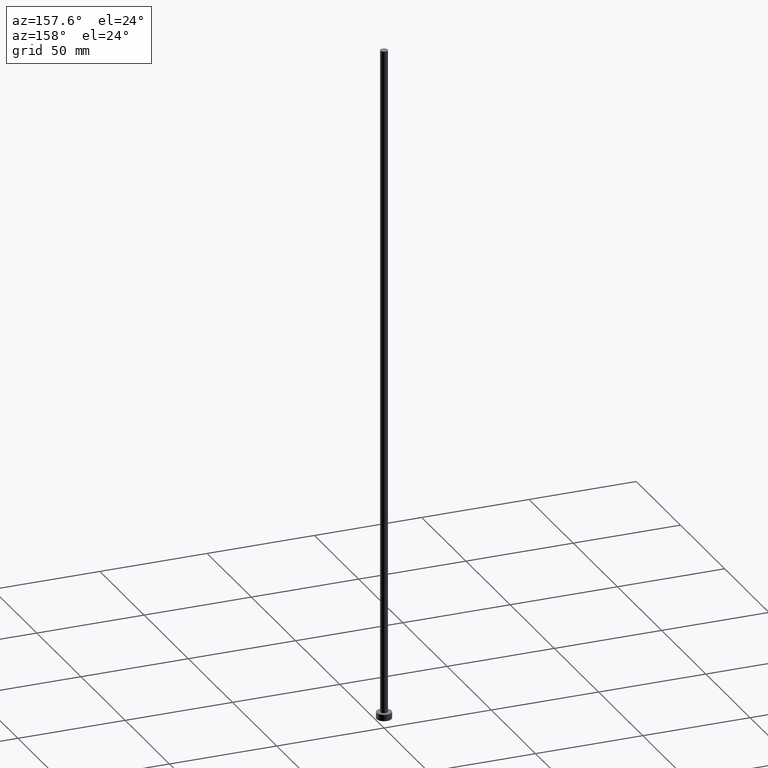
[diagram: clean part render]
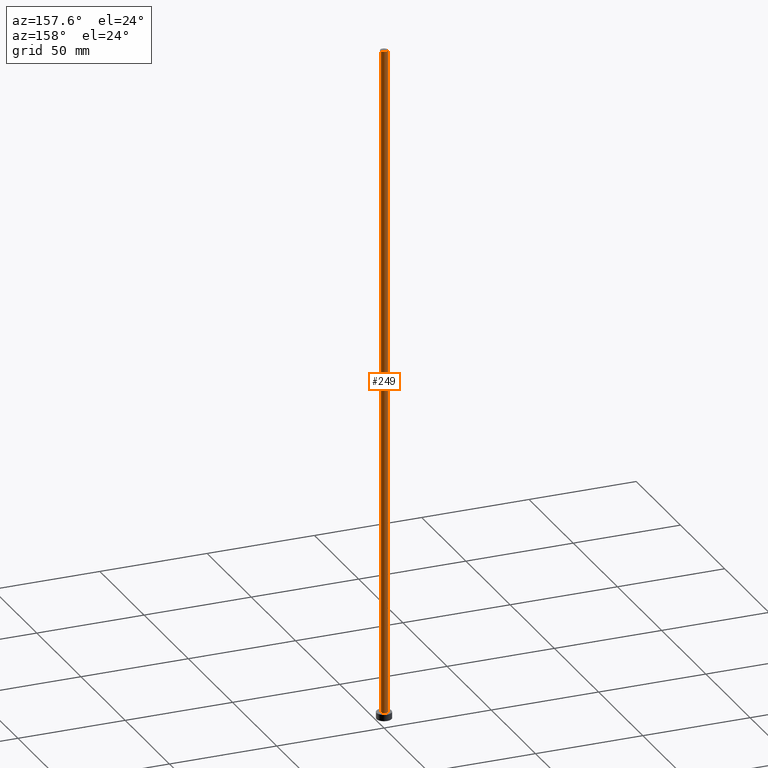
[diagram: same view with one face highlighted and labeled with its STEP entity id]
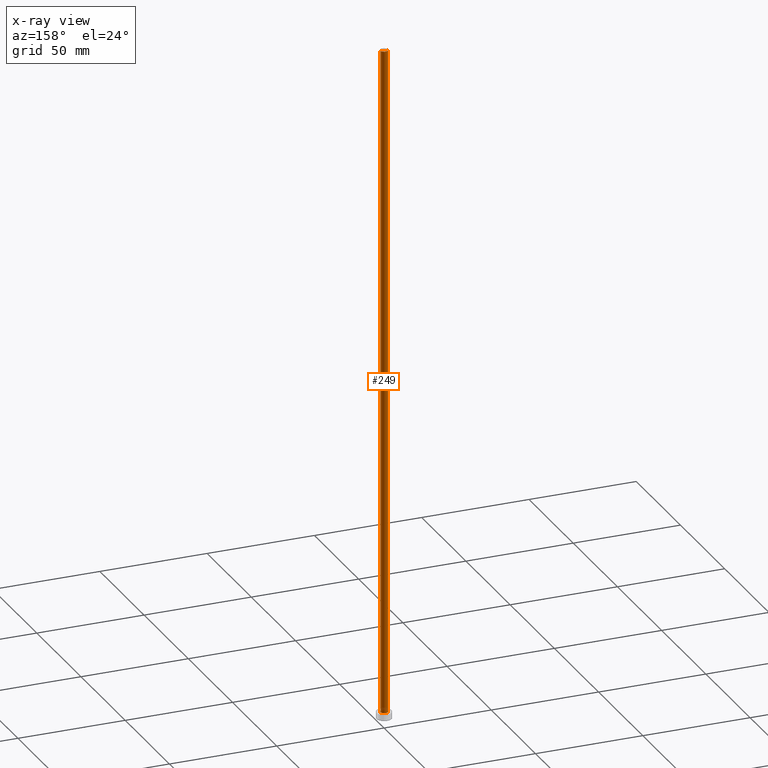
[diagram: x-ray of the same camera — body ghosted, the highlighted face saturated]
A machine part, auxiliary view. The second image highlights one B-rep face of the part: STEP entity #249.
The next image is the same camera in x-ray: the body ghosted, the highlighted face saturated — about 0% of this face is hidden behind the body in this view.
In plain terms, the highlighted cylindrical surface (edge-blend (fillet) strip) has radius 1.75 mm, axis along (-0, -0, -1).
Its self-contained STEP definition (entity closure, byte-faithful):
#3 = LINE ( 'NONE', #85, #44 ) ;
#8 = EDGE_CURVE ( 'NONE', #156, #35, #140, .T. ) ;
#17 = AXIS2_PLACEMENT_3D ( 'NONE', #67, #204, #186 ) ;
#22 = DIRECTION ( 'NONE',  ( 1.000000000000000000, 0.000000000000000000, 0.000000000000000000 ) ) ;
#30 = DIRECTION ( 'NONE',  ( -0.000000000000000000, -0.000000000000000000, -1.000000000000000000 ) ) ;
#35 = VERTEX_POINT ( 'NONE', #37 ) ;
#37 = CARTESIAN_POINT ( 'NONE',  ( 1.750000000000000000, 2.143131898507868297E-16, 3.000000000000000000 ) ) ;
#44 = VECTOR ( 'NONE', #149, 1000.000000000000000 ) ;
#50 = DIRECTION ( 'NONE',  ( -1.000000000000000000, 0.000000000000000000, 0.000000000000000000 ) ) ;
#52 = CARTESIAN_POINT ( 'NONE',  ( 0.000000000000000000, 0.000000000000000000, 3.000000000000000000 ) ) ;
#60 = CARTESIAN_POINT ( 'NONE',  ( 1.750000000000000000, 2.143131898507868297E-16, 315.0000000000000000 ) ) ;
#61 = EDGE_CURVE ( 'NONE', #189, #109, #3, .T. ) ;
#67 = CARTESIAN_POINT ( 'NONE',  ( 0.000000000000000000, 0.000000000000000000, 315.0000000000000000 ) ) ;
#78 = DIRECTION ( 'NONE',  ( -0.000000000000000000, -0.000000000000000000, -1.000000000000000000 ) ) ;
#79 = CARTESIAN_POINT ( 'NONE',  ( -1.750000000000000000, 0.000000000000000000, 3.000000000000000000 ) ) ;
#83 = EDGE_CURVE ( 'NONE', #156, #189, #201, .T. ) ;
#84 = ORIENTED_EDGE ( 'NONE', *, *, #8, .T. ) ;
#85 = CARTESIAN_POINT ( 'NONE',  ( -1.750000000000000000, 0.000000000000000000, 315.0000000000000000 ) ) ;
#109 = VERTEX_POINT ( 'NONE', #79 ) ;
#118 = EDGE_LOOP ( 'NONE', ( #123, #84, #163, #126 ) ) ;
#123 = ORIENTED_EDGE ( 'NONE', *, *, #83, .F. ) ;
#126 = ORIENTED_EDGE ( 'NONE', *, *, #61, .F. ) ;
#140 = LINE ( 'NONE', #60, #196 ) ;
#149 = DIRECTION ( 'NONE',  ( -0.000000000000000000, -0.000000000000000000, -1.000000000000000000 ) ) ;
#156 = VERTEX_POINT ( 'NONE', #231 ) ;
#163 = ORIENTED_EDGE ( 'NONE', *, *, #195, .T. ) ;
#168 = CIRCLE ( 'NONE', #217, 1.750000000000000000 ) ;
#178 = CARTESIAN_POINT ( 'NONE',  ( 0.000000000000000000, 0.000000000000000000, 315.0000000000000000 ) ) ;
#186 = DIRECTION ( 'NONE',  ( 1.000000000000000000, 0.000000000000000000, 0.000000000000000000 ) ) ;
#189 = VERTEX_POINT ( 'NONE', #254 ) ;
#195 = EDGE_CURVE ( 'NONE', #35, #109, #168, .T. ) ;
#196 = VECTOR ( 'NONE', #78, 1000.000000000000000 ) ;
#198 = DIRECTION ( 'NONE',  ( 0.000000000000000000, 0.000000000000000000, 1.000000000000000000 ) ) ;
#200 = CYLINDRICAL_SURFACE ( 'NONE', #203, 1.750000000000000000 ) ;
#201 = CIRCLE ( 'NONE', #17, 1.750000000000000000 ) ;
#203 = AXIS2_PLACEMENT_3D ( 'NONE', #178, #30, #50 ) ;
#204 = DIRECTION ( 'NONE',  ( 0.000000000000000000, 0.000000000000000000, 1.000000000000000000 ) ) ;
#217 = AXIS2_PLACEMENT_3D ( 'NONE', #52, #198, #22 ) ;
#231 = CARTESIAN_POINT ( 'NONE',  ( 1.750000000000000000, 2.143131898507868297E-16, 315.0000000000000000 ) ) ;
#234 = FACE_OUTER_BOUND ( 'NONE', #118, .T. ) ;
#249 = ADVANCED_FACE ( 'NONE', ( #234 ), #200, .T. ) ;
#254 = CARTESIAN_POINT ( 'NONE',  ( -1.750000000000000000, 0.000000000000000000, 315.0000000000000000 ) ) ;